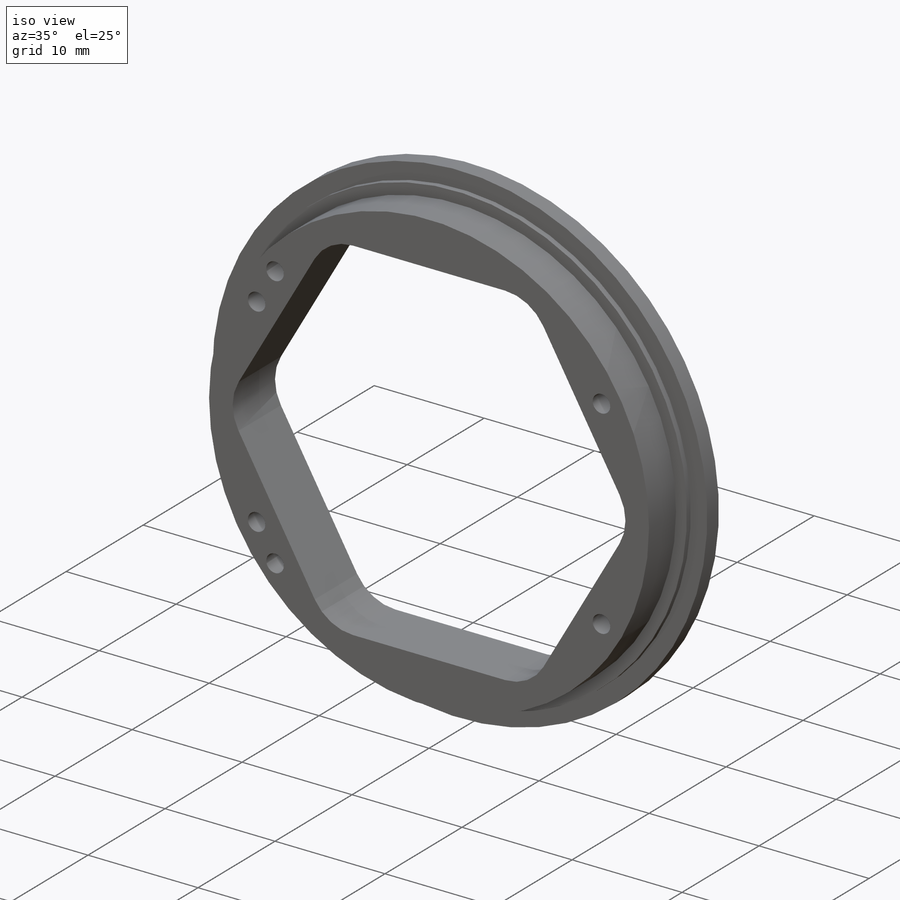
[diagram: iso view]
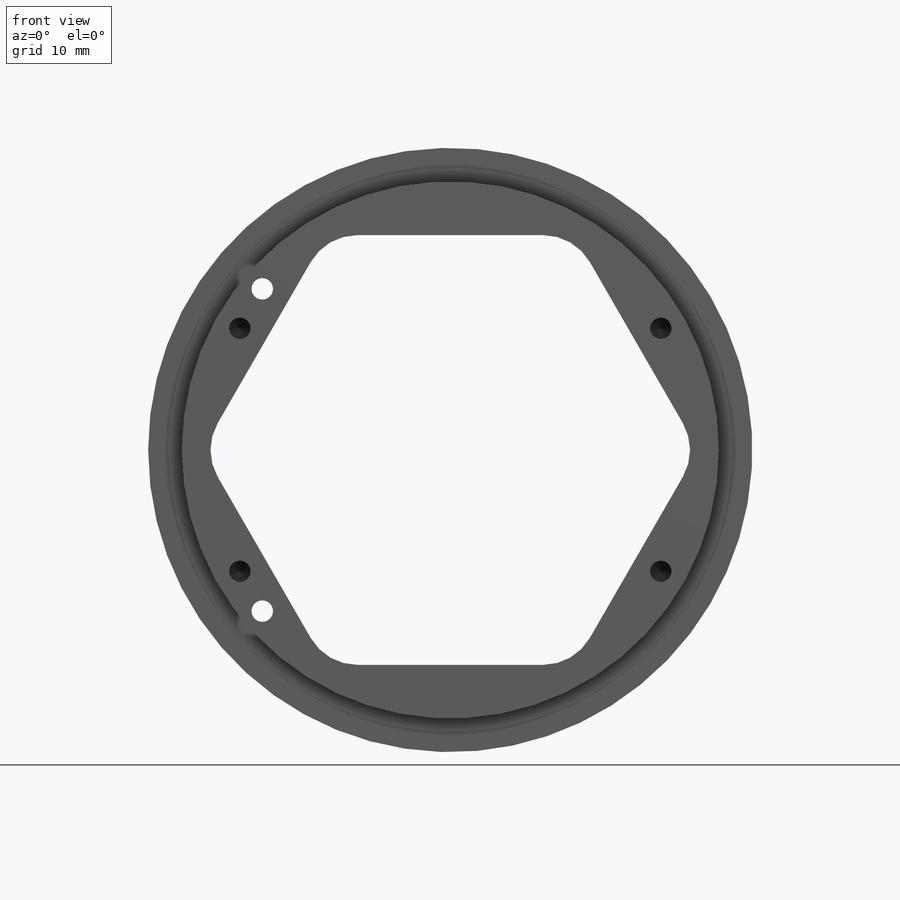
[diagram: front view]
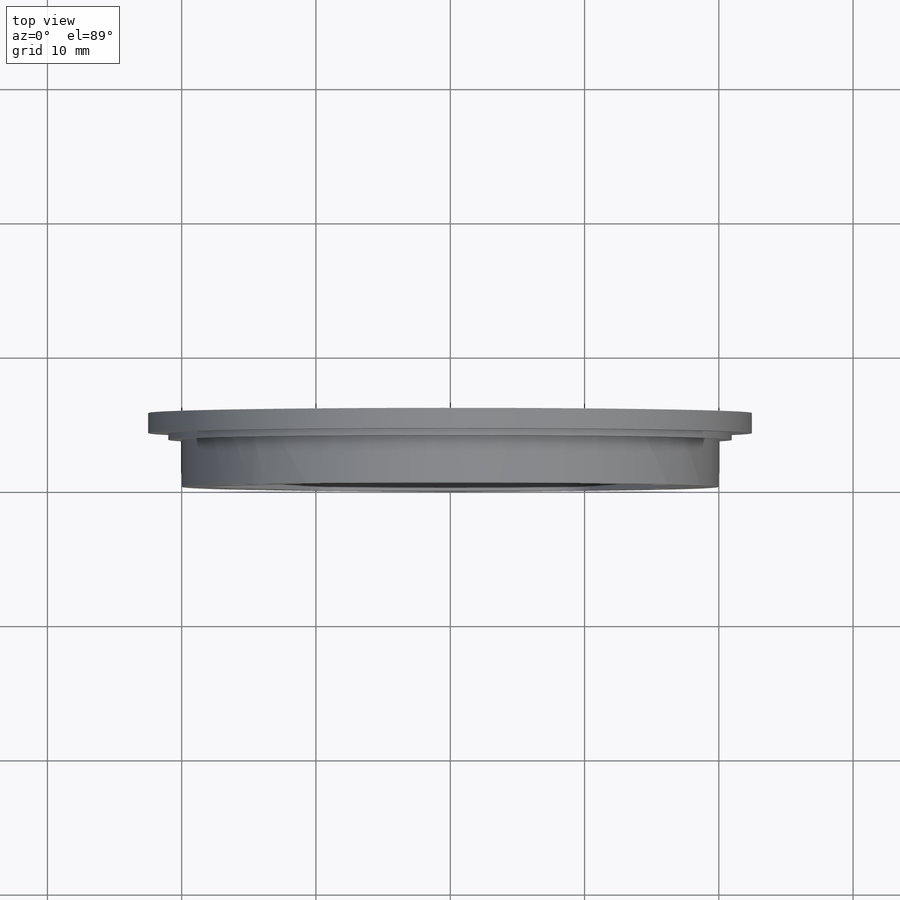
[diagram: top view]
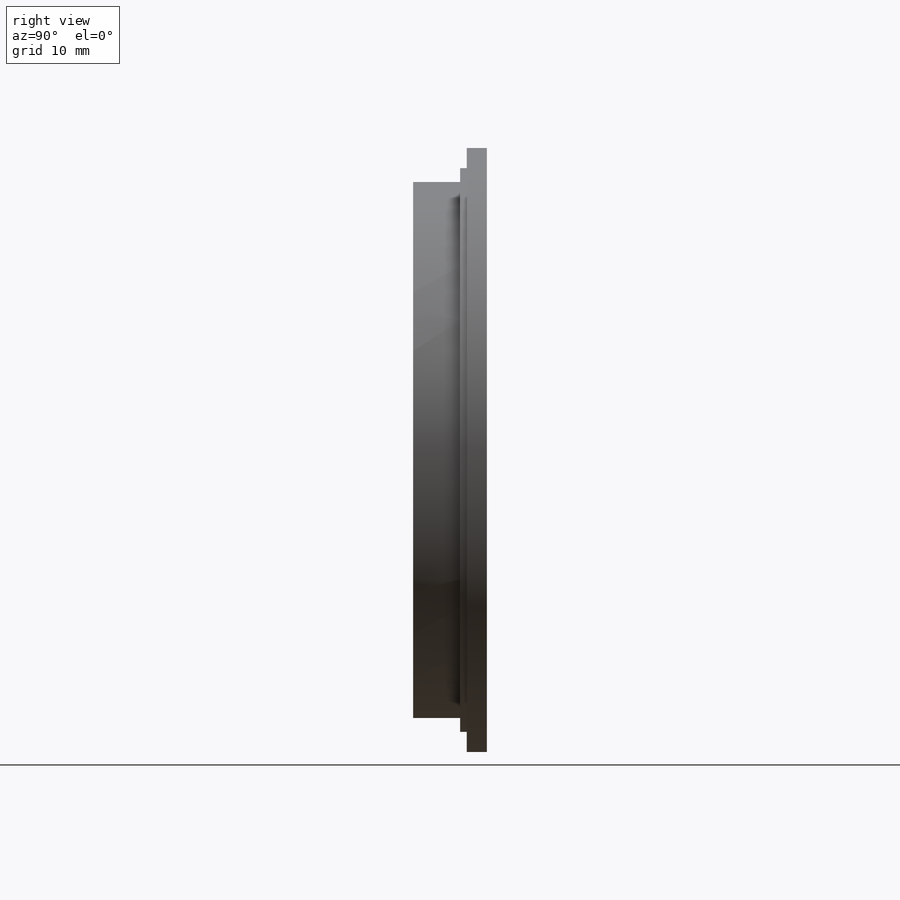
[diagram: right view]
SOLIDWORKS PART (.sldprt)
format: sldprt  version: not decoded by parser v0  size: 2,051,072 bytes
history: native  units: mm
features: sketch x11, thread x6, cut_extrude x4, plane x3, hole x3, material x1, revolve x1, fillet x1 (+12 scaffold rows collapsed; 2 parser-record rows omitted)
feature tree (44):
  scaffold x12  (default folders/planes/origin — collapsed)
  material  "2014-T6"
  plane  "Ebene vorne"
  plane  "Ebene oben"
  plane  "Ebene rechts"
  parser-record x2  (decoder bookkeeping rows leaked as tree rows — omitted from the tree; the rows remain in map.json)
  sketch  "Skizze1"  dims[c1.D1=42.0mm c1.D2=39.8mm c1.D3=0.5mm c1.D4=43.0mm c1.D5=0.5mm c1.D6=3.5mm c1.D7=45.0mm c1.D8=1.5mm c2.D2=40.0mm]
  revolve  "Grundkörper"  Angle=360deg
  sketch  "Skizze3"  dims[c1.D1=38.0mm c1.D3=4.2mm c1.D4=2.0mm c1.D2=11.0mm c2.D4=1.5mm c2.D1=32.0mm c2.D2=4.0mm]
  cut_extrude  "Zentrales Loch"  [1 undecoded]
  fillet  "Verrundung Zentrales Loch"  Radius=4mm
  sketch  "Skizze4"  dims[D1=100.0mm D2=8.0mm]
  cut_extrude  "Ausschnitt Lageraufnahme"  Depth=4mm Tiefe=4mm
  sketch  "Skizze12"  dims[D4=6.0mm D1=16.0mm D2=30.0mm D3=16.7mm]
  cut_extrude  "Ausschnitt Antrieb"  [1 undecoded]
  cut_extrude  "Ausschnitt Antrieb 2"  [1 undecoded]
  sketch  "Skizze12<3>"
  hole  "M2 Senkung"  Diameter=2mm Depth=5.5mm
  sketch  "Skizze6"
  sketch  "Skizze7"  dims[hole-wizard template sketch: 55 standard entries collapsed; hole parameters kept: c17.Bohrungstiefe=5.5mm c17.Senkdurchmesser (Oben)=4.0mm c17.D4=~3.666174mm c17.Senkwinkel (Oben)=90.0deg]
  hole  "M2 Gewinde"  Diameter=1.6mm Depth=5mm
  sketch  "Skizze9"
  sketch  "Skizze8"  dims[hole-wizard template sketch: 47 standard entries collapsed; hole parameters kept: c15.Bohrungstiefe=5.0mm c15.D3=~14.816244mm c15.Spitzenwinkel=118.0deg]
  thread  "Bohrungsgewinde1"  Diameter=4mm  [1 undecoded]
  thread  "Bohrungsgewinde2"  Diameter=4mm  [1 undecoded]
  thread  "Bohrungsgewinde3"  Diameter=4mm  [1 undecoded]
  thread  "Bohrungsgewinde4"  Diameter=4mm  [1 undecoded]
  hole  "M2 Adaptergewinde"  Diameter=1.6mm Depth=6mm
  sketch  "Skizze11"  dims[D1=24.0mm D2=14.0mm]
  sketch  "Skizze10"  dims[hole-wizard template sketch: 50 standard entries collapsed; hole parameters above]
  thread  "Bohrungsgewinde5"  Diameter=4mm  [1 undecoded]
  thread  "Bohrungsgewinde6"  Diameter=4mm  [1 undecoded]
decode coverage: 20 of 26 modeling features carry decoded parameters
note: ~ marks probable driven/reference dimensions
note: 9 parameter values undecoded
summary: no parameter record found for 3 features
note: suppression state not decoded; provenance and decode notes live in map.json
